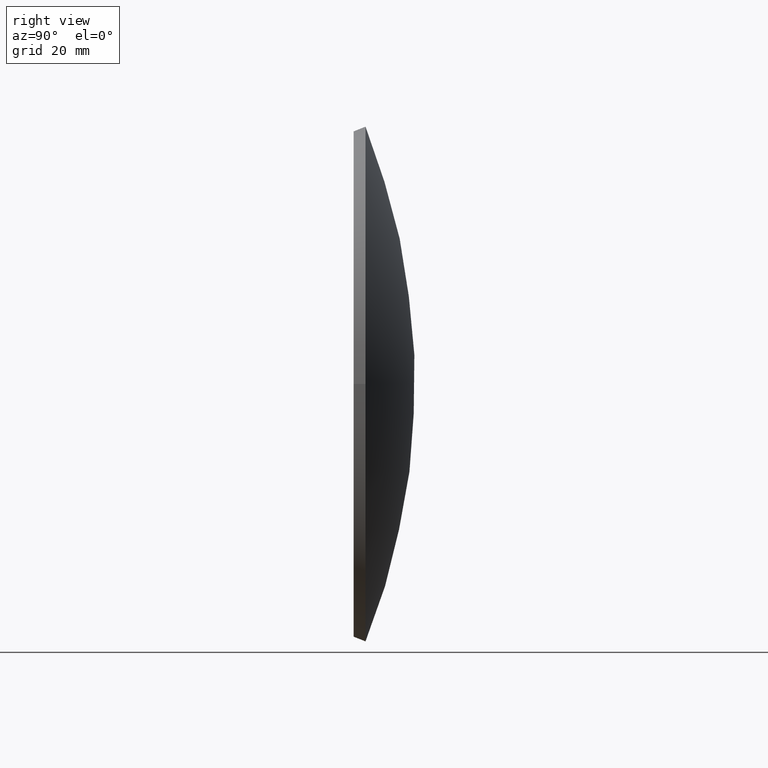
[diagram: clean part render]
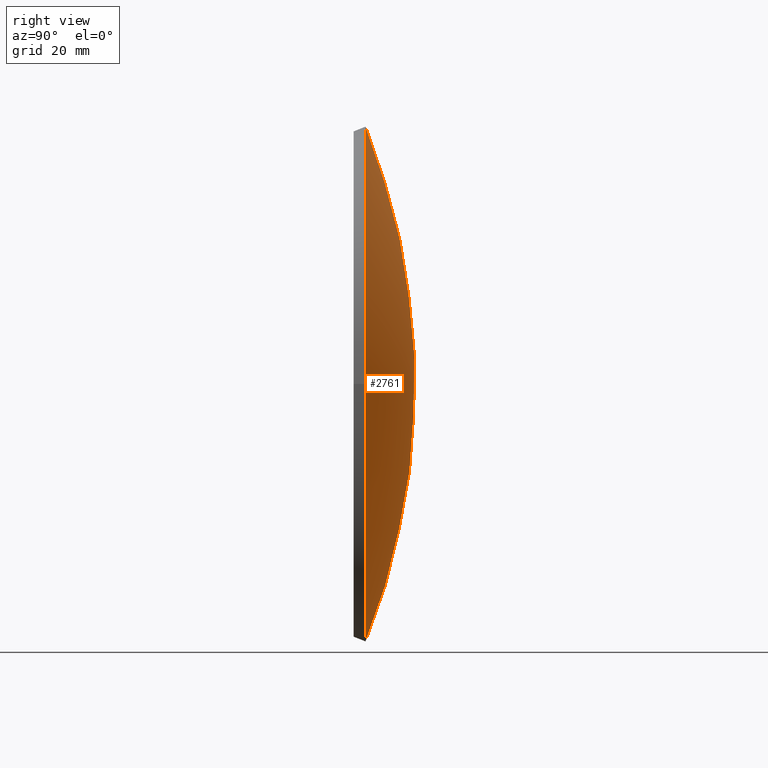
[diagram: same view with one face highlighted and labeled with its STEP entity id]
A machine part, right view. The second image highlights one B-rep face of the part: STEP entity #2761.
In plain terms, the highlighted spherical surface has radius 136.606 mm.
Its self-contained STEP definition (entity closure, byte-faithful):
#288 = AXIS2_PLACEMENT_3D ( 'NONE', #4263, #10443, #2474 ) ;
#391 = ORIENTED_EDGE ( 'NONE', *, *, #8678, .F. ) ;
#1305 = VERTEX_POINT ( 'NONE', #3600 ) ;
#1663 = CARTESIAN_POINT ( 'NONE',  ( 2.099787492326960408E-25, -124.6058289041495755, 0.000000000000000000 ) ) ;
#2474 = DIRECTION ( 'NONE',  ( 1.000000000000000000, 3.280516672391784963E-15, 0.000000000000000000 ) ) ;
#2761 = ADVANCED_FACE ( 'NONE', ( #7455 ), #5635, .T. ) ;
#3525 = CIRCLE ( 'NONE', #288, 50.49999999999997868 ) ;
#3600 = CARTESIAN_POINT ( 'NONE',  ( 50.50000000000000711, 2.322901061094261088, 0.000000000000000000 ) ) ;
#4263 = CARTESIAN_POINT ( 'NONE',  ( 3.178583931155497967E-14, 2.322901061094095443, 0.000000000000000000 ) ) ;
#5635 = SPHERICAL_SURFACE ( 'NONE', #6588, 136.6058289041495755 ) ;
#6588 = AXIS2_PLACEMENT_3D ( 'NONE', #1663, #8610, #7871 ) ;
#7455 = FACE_OUTER_BOUND ( 'NONE', #10393, .T. ) ;
#7871 = DIRECTION ( 'NONE',  ( 1.000000000000000000, 3.250880386382786799E-15, 0.000000000000000000 ) ) ;
#8610 = DIRECTION ( 'NONE',  ( 0.000000000000000000, -0.000000000000000000, 1.000000000000000000 ) ) ;
#8678 = EDGE_CURVE ( 'NONE', #1305, #1305, #3525, .T. ) ;
#10393 = EDGE_LOOP ( 'NONE', ( #391 ) ) ;
#10443 = DIRECTION ( 'NONE',  ( 3.284645482289417784E-15, -1.000000000000000000, -0.000000000000000000 ) ) ;